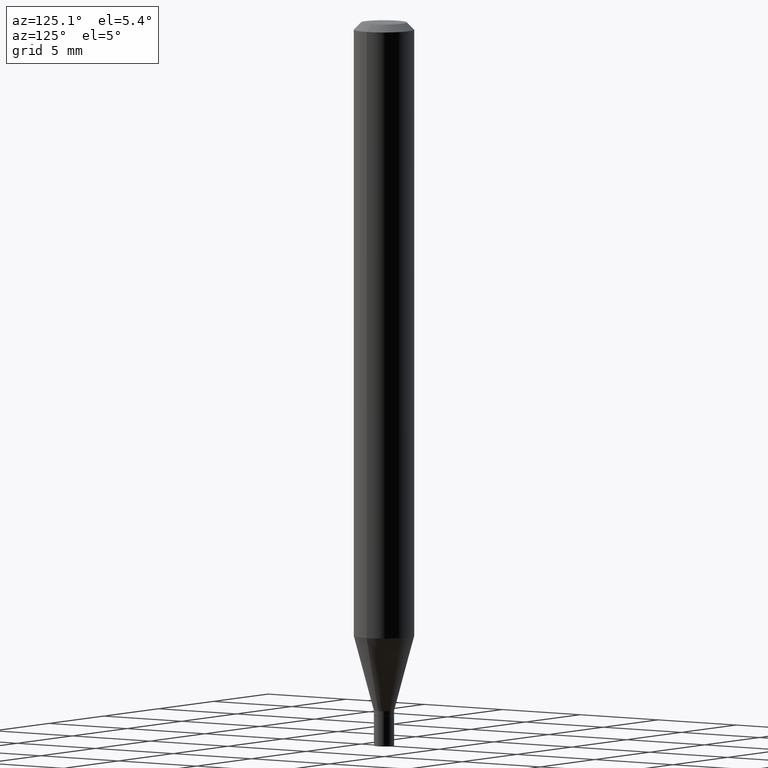
[diagram: clean part render]
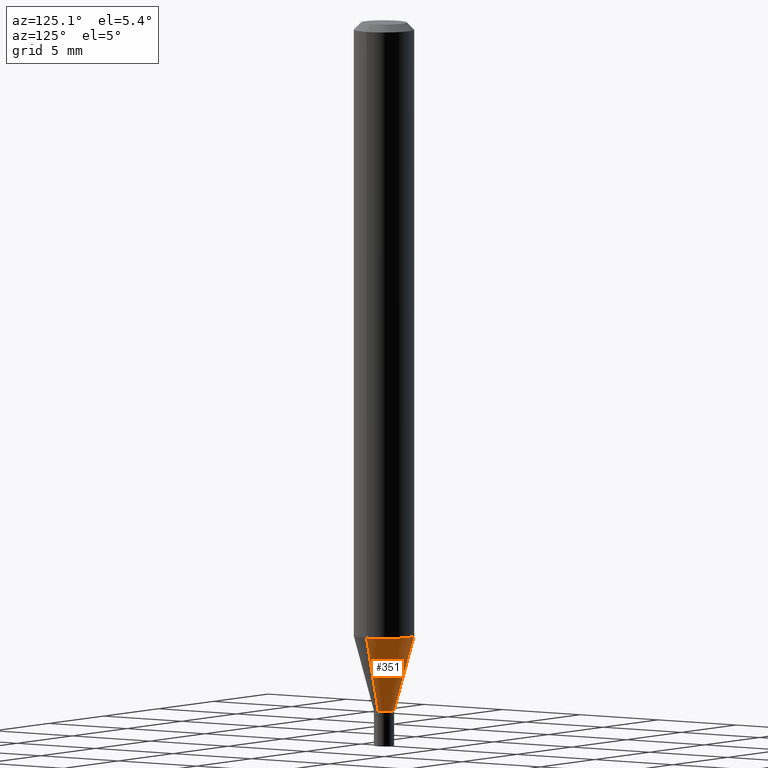
[diagram: same view with one face highlighted and labeled with its STEP entity id]
A machine part, auxiliary view. The second image highlights one B-rep face of the part: STEP entity #351.
In plain terms, the highlighted conical surface has half-angle 15 deg.
Its self-contained STEP definition (entity closure, byte-faithful):
#5 = CARTESIAN_POINT ( 'NONE',  ( -0.02099999999999992498, -4.415311774031822362E-15, -1.427000000000000046 ) ) ;
#11 = VERTEX_POINT ( 'NONE', #418 ) ;
#16 = LINE ( 'NONE', #212, #347 ) ;
#40 = LINE ( 'NONE', #317, #140 ) ;
#45 = AXIS2_PLACEMENT_3D ( 'NONE', #410, #445, #47 ) ;
#47 = DIRECTION ( 'NONE',  ( 1.000000000000000000, -6.982962677686265922E-15, 0.000000000000000000 ) ) ;
#50 = EDGE_LOOP ( 'NONE', ( #260, #238, #362, #426 ) ) ;
#83 = FACE_OUTER_BOUND ( 'NONE', #50, .T. ) ;
#89 = DIRECTION ( 'NONE',  ( 1.000000000000000000, -6.982962677686262766E-15, 0.000000000000000000 ) ) ;
#140 = VECTOR ( 'NONE', #277, 39.37007874015748854 ) ;
#145 = DIRECTION ( 'NONE',  ( 1.000000000000000000, -6.982962677686265922E-15, 0.000000000000000000 ) ) ;
#160 = VERTEX_POINT ( 'NONE', #205 ) ;
#164 = CIRCLE ( 'NONE', #45, 0.02099999999999992498 ) ;
#203 = AXIS2_PLACEMENT_3D ( 'NONE', #264, #225, #89 ) ;
#205 = CARTESIAN_POINT ( 'NONE',  ( 0.06250000000000000000, -4.878018029249550992E-15, -1.272119891485891996 ) ) ;
#212 = CARTESIAN_POINT ( 'NONE',  ( -0.02099999999999992498, -4.833129896019548018E-15, -1.427000000000000046 ) ) ;
#216 = EDGE_CURVE ( 'NONE', #11, #160, #40, .T. ) ;
#222 = CARTESIAN_POINT ( 'NONE',  ( 3.489683986426190072E-29, -4.982343870529169189E-15, -1.427000000000000046 ) ) ;
#223 = VERTEX_POINT ( 'NONE', #5 ) ;
#225 = DIRECTION ( 'NONE',  ( -2.445468806185136597E-29, 3.491481338843145583E-15, 1.000000000000000000 ) ) ;
#238 = ORIENTED_EDGE ( 'NONE', *, *, #279, .T. ) ;
#243 = CONICAL_SURFACE ( 'NONE', #423, 0.02099999999999992498, 0.2617993877991504625 ) ;
#249 = CIRCLE ( 'NONE', #203, 0.06250000000000000000 ) ;
#260 = ORIENTED_EDGE ( 'NONE', *, *, #303, .T. ) ;
#264 = CARTESIAN_POINT ( 'NONE',  ( 3.110929512356370285E-29, -4.441582861894159323E-15, -1.272119891485891996 ) ) ;
#277 = DIRECTION ( 'NONE',  ( 0.2588190451025217387, 1.565188264969619207E-15, 0.9659258262890679791 ) ) ;
#279 = EDGE_CURVE ( 'NONE', #223, #377, #16, .T. ) ;
#290 = DIRECTION ( 'NONE',  ( -0.2588190451025217387, 5.211531920934551042E-15, 0.9659258262890679791 ) ) ;
#299 = CARTESIAN_POINT ( 'NONE',  ( -0.06250000000000000000, -3.997493652044096706E-15, -1.272119891485891996 ) ) ;
#303 = EDGE_CURVE ( 'NONE', #11, #223, #164, .T. ) ;
#317 = CARTESIAN_POINT ( 'NONE',  ( 0.02099999999999992498, -5.128986086760580222E-15, -1.427000000000000046 ) ) ;
#347 = VECTOR ( 'NONE', #290, 39.37007874015748854 ) ;
#351 = ADVANCED_FACE ( 'NONE', ( #83 ), #243, .T. ) ;
#362 = ORIENTED_EDGE ( 'NONE', *, *, #387, .F. ) ;
#377 = VERTEX_POINT ( 'NONE', #299 ) ;
#387 = EDGE_CURVE ( 'NONE', #160, #377, #249, .T. ) ;
#410 = CARTESIAN_POINT ( 'NONE',  ( 3.489683986426190072E-29, -4.982343870529169189E-15, -1.427000000000000046 ) ) ;
#418 = CARTESIAN_POINT ( 'NONE',  ( 0.02099999999999992498, -5.128986086760580222E-15, -1.427000000000000046 ) ) ;
#423 = AXIS2_PLACEMENT_3D ( 'NONE', #222, #439, #145 ) ;
#426 = ORIENTED_EDGE ( 'NONE', *, *, #216, .F. ) ;
#439 = DIRECTION ( 'NONE',  ( -2.445468806185136597E-29, 3.491481338843145583E-15, 1.000000000000000000 ) ) ;
#445 = DIRECTION ( 'NONE',  ( -2.445468806185136597E-29, 3.491481338843145583E-15, 1.000000000000000000 ) ) ;